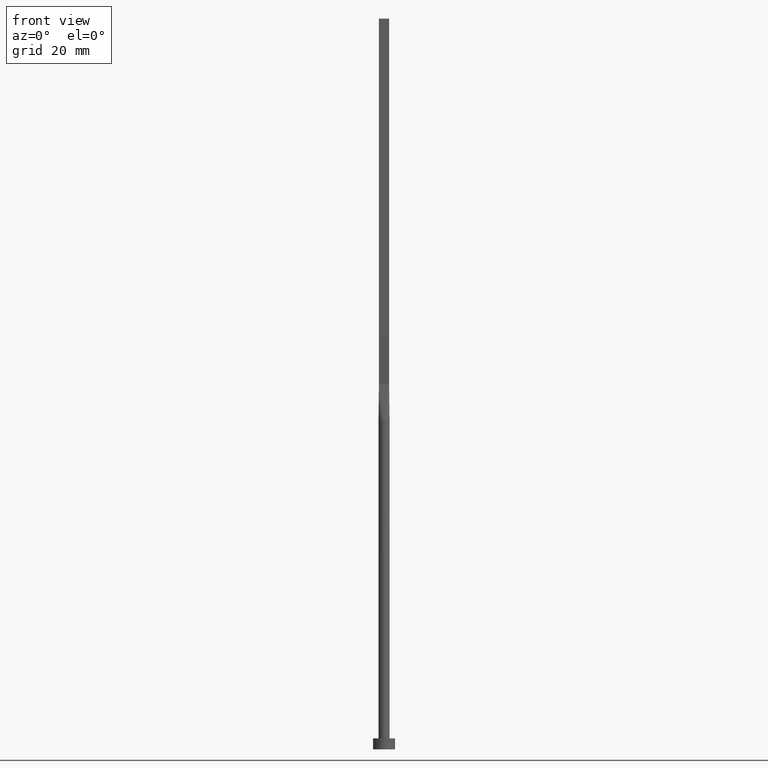
[diagram: clean part render]
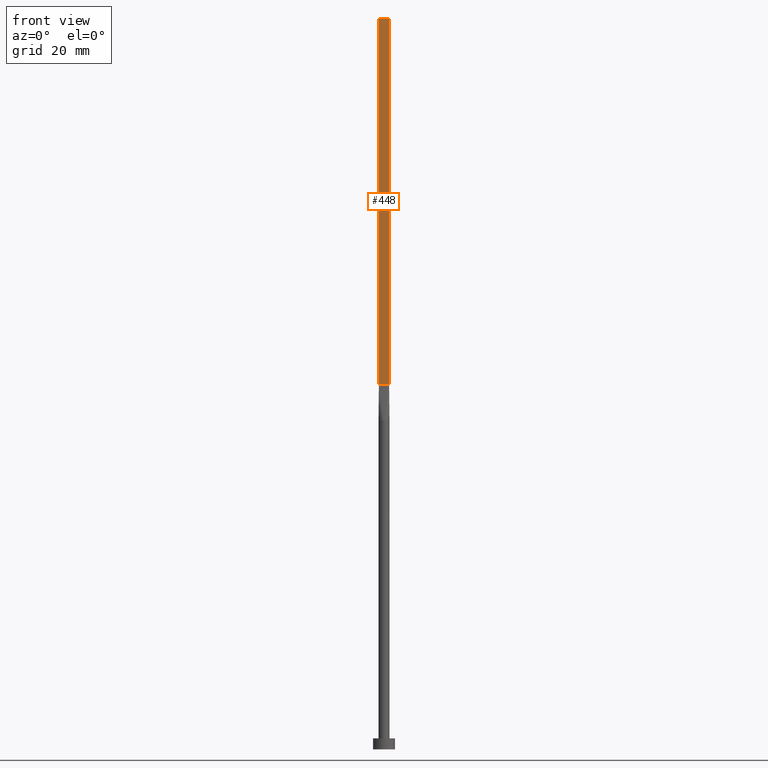
[diagram: same view with one face highlighted and labeled with its STEP entity id]
A machine part, front view. The second image highlights one B-rep face of the part: STEP entity #448.
In plain terms, the highlighted planar face has unit normal (0, 1, -0).
Its self-contained STEP definition (entity closure, byte-faithful):
#12 = CARTESIAN_POINT ( 'NONE',  ( -1.399999999999999911, -0.4999999999999995559, 200.0000000000000000 ) ) ;
#13 = CARTESIAN_POINT ( 'NONE',  ( -1.399999999999999911, -0.4999999999999995559, 200.0000000000000000 ) ) ;
#26 = VERTEX_POINT ( 'NONE', #263 ) ;
#43 = CARTESIAN_POINT ( 'NONE',  ( -1.399999999999999911, -0.4999999999999995559, 99.99999999999998579 ) ) ;
#48 = LINE ( 'NONE', #105, #310 ) ;
#87 = VERTEX_POINT ( 'NONE', #96 ) ;
#95 = LINE ( 'NONE', #414, #176 ) ;
#96 = CARTESIAN_POINT ( 'NONE',  ( -1.399999999999999911, -0.4999999999999995559, 200.0000000000000000 ) ) ;
#105 = CARTESIAN_POINT ( 'NONE',  ( 1.399999999999999911, -0.4999999999999997780, 200.0000000000000000 ) ) ;
#109 = EDGE_CURVE ( 'NONE', #87, #449, #555, .T. ) ;
#176 = VECTOR ( 'NONE', #190, 1000.000000000000000 ) ;
#180 = EDGE_CURVE ( 'NONE', #26, #204, #48, .T. ) ;
#186 = DIRECTION ( 'NONE',  ( -1.000000000000000000, 7.744301232039317914E-17, 0.000000000000000000 ) ) ;
#187 = CARTESIAN_POINT ( 'NONE',  ( 1.399999999999999911, -0.4999999999999997780, 99.99999999999998579 ) ) ;
#190 = DIRECTION ( 'NONE',  ( 1.000000000000000000, -7.744301232039317914E-17, 0.000000000000000000 ) ) ;
#194 = PLANE ( 'NONE',  #467 ) ;
#204 = VERTEX_POINT ( 'NONE', #187 ) ;
#222 = ORIENTED_EDGE ( 'NONE', *, *, #533, .T. ) ;
#257 = VECTOR ( 'NONE', #321, 1000.000000000000000 ) ;
#263 = CARTESIAN_POINT ( 'NONE',  ( 1.399999999999999911, -0.4999999999999997780, 200.0000000000000000 ) ) ;
#266 = EDGE_LOOP ( 'NONE', ( #222, #312, #408, #305 ) ) ;
#305 = ORIENTED_EDGE ( 'NONE', *, *, #109, .T. ) ;
#310 = VECTOR ( 'NONE', #463, 1000.000000000000000 ) ;
#312 = ORIENTED_EDGE ( 'NONE', *, *, #180, .F. ) ;
#318 = DIRECTION ( 'NONE',  ( 1.000000000000000000, -7.744301232039317914E-17, 0.000000000000000000 ) ) ;
#321 = DIRECTION ( 'NONE',  ( -0.000000000000000000, -0.000000000000000000, -1.000000000000000000 ) ) ;
#325 = VECTOR ( 'NONE', #318, 1000.000000000000000 ) ;
#330 = DIRECTION ( 'NONE',  ( 7.744301232039317914E-17, 1.000000000000000000, -0.000000000000000000 ) ) ;
#365 = LINE ( 'NONE', #43, #325 ) ;
#372 = CARTESIAN_POINT ( 'NONE',  ( -1.399999999999999911, -0.4999999999999995559, 99.99999999999998579 ) ) ;
#408 = ORIENTED_EDGE ( 'NONE', *, *, #548, .F. ) ;
#414 = CARTESIAN_POINT ( 'NONE',  ( -1.399999999999999911, -0.4999999999999995559, 200.0000000000000000 ) ) ;
#417 = FACE_OUTER_BOUND ( 'NONE', #266, .T. ) ;
#448 = ADVANCED_FACE ( 'NONE', ( #417 ), #194, .F. ) ;
#449 = VERTEX_POINT ( 'NONE', #372 ) ;
#463 = DIRECTION ( 'NONE',  ( -0.000000000000000000, -0.000000000000000000, -1.000000000000000000 ) ) ;
#467 = AXIS2_PLACEMENT_3D ( 'NONE', #12, #330, #186 ) ;
#533 = EDGE_CURVE ( 'NONE', #449, #204, #365, .T. ) ;
#548 = EDGE_CURVE ( 'NONE', #87, #26, #95, .T. ) ;
#555 = LINE ( 'NONE', #13, #257 ) ;